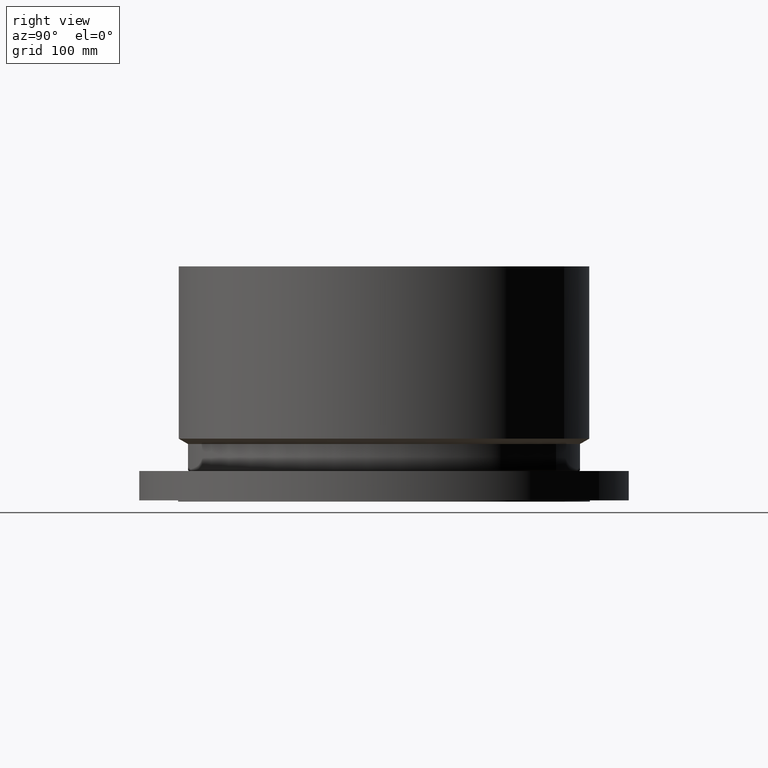
[diagram: clean part render]
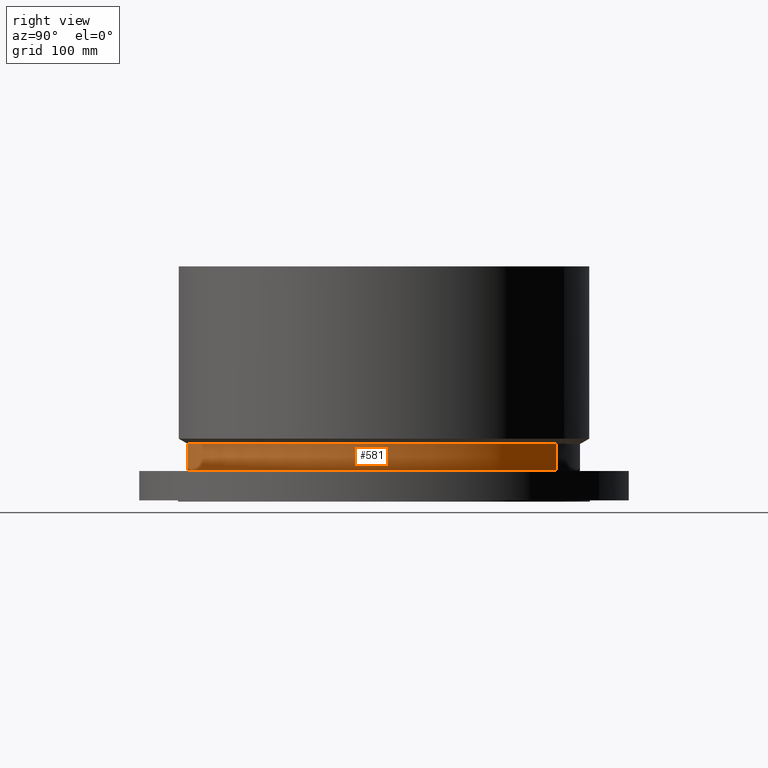
[diagram: same view with one face highlighted and labeled with its STEP entity id]
A machine part, right view. The second image highlights one B-rep face of the part: STEP entity #581.
In plain terms, the highlighted cylindrical surface (partial cylindrical patch) has radius 254 mm, axis along (0, 0, -1).
Its self-contained STEP definition (entity closure, byte-faithful):
#522=AXIS2_PLACEMENT_3D('Circle Axis2P3D',#520,#521,$) ;
#554=AXIS2_PLACEMENT_3D('Cylinder Axis2P3D',#551,#552,#553) ;
#565=AXIS2_PLACEMENT_3D('Circle Axis2P3D',#563,#564,$) ;
#517=CARTESIAN_POINT('Vertex',(4.79425538606,8.77582561894,1.53848076212)) ;
#520=CARTESIAN_POINT('Axis2P3D Location',(0.,0.,1.53848076212)) ;
#524=CARTESIAN_POINT('Vertex',(-4.79425538606,-8.77582561894,1.53848076212)) ;
#551=CARTESIAN_POINT('Axis2P3D Location',(0.,0.,5.93750000002)) ;
#556=CARTESIAN_POINT('Line Origine',(4.79425538606,8.77582561894,2.20799038107)) ;
#560=CARTESIAN_POINT('Vertex',(4.79425538606,8.77582561894,2.87750000001)) ;
#563=CARTESIAN_POINT('Axis2P3D Location',(0.,0.,2.87750000001)) ;
#567=CARTESIAN_POINT('Vertex',(-4.79425538606,-8.77582561894,2.87750000001)) ;
#570=CARTESIAN_POINT('Line Origine',(-4.79425538606,-8.77582561894,2.20799038107)) ;
#521=DIRECTION('Axis2P3D Direction',(-0.,0.,0.0393700787402)) ;
#552=DIRECTION('Axis2P3D Direction',(0.,0.,-0.0393700787402)) ;
#553=DIRECTION('Axis2P3D XDirection',(-0.0188750212049,-0.0345504945626,0.)) ;
#557=DIRECTION('Vector Direction',(0.,0.,-0.0393700787402)) ;
#564=DIRECTION('Axis2P3D Direction',(0.,0.,-0.0393700787402)) ;
#571=DIRECTION('Vector Direction',(0.,0.,-0.0393700787402)) ;
#558=VECTOR('Line Direction',#557,0.0393700787402) ;
#572=VECTOR('Line Direction',#571,0.0393700787402) ;
#576=ORIENTED_EDGE('',*,*,#526,.F.) ;
#577=ORIENTED_EDGE('',*,*,#562,.T.) ;
#578=ORIENTED_EDGE('',*,*,#569,.T.) ;
#579=ORIENTED_EDGE('',*,*,#574,.F.) ;
#581=ADVANCED_FACE('PartBody',(#580),#555,.T.) ;
#523=CIRCLE('generated circle',#522,10.) ;
#566=CIRCLE('generated circle',#565,10.) ;
#555=CYLINDRICAL_SURFACE('generated cylinder',#554,10.) ;
#526=EDGE_CURVE('',#518,#525,#523,.F.) ;
#562=EDGE_CURVE('',#518,#561,#559,.F.) ;
#569=EDGE_CURVE('',#561,#568,#566,.T.) ;
#574=EDGE_CURVE('',#525,#568,#573,.F.) ;
#575=EDGE_LOOP('',(#576,#577,#578,#579)) ;
#580=FACE_OUTER_BOUND('',#575,.T.) ;
#559=LINE('Line',#556,#558) ;
#573=LINE('Line',#570,#572) ;
#518=VERTEX_POINT('',#517) ;
#525=VERTEX_POINT('',#524) ;
#561=VERTEX_POINT('',#560) ;
#568=VERTEX_POINT('',#567) ;